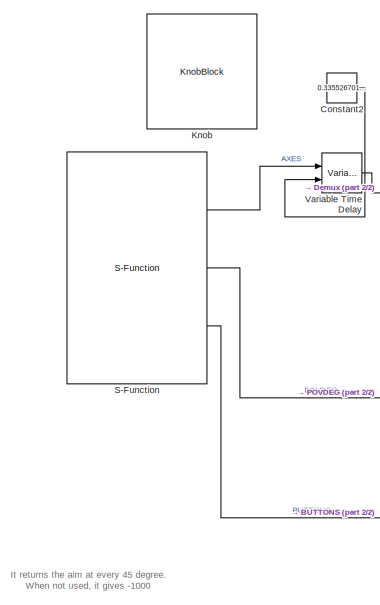
[diagram: root canvas - part 1/2, left side, full height]
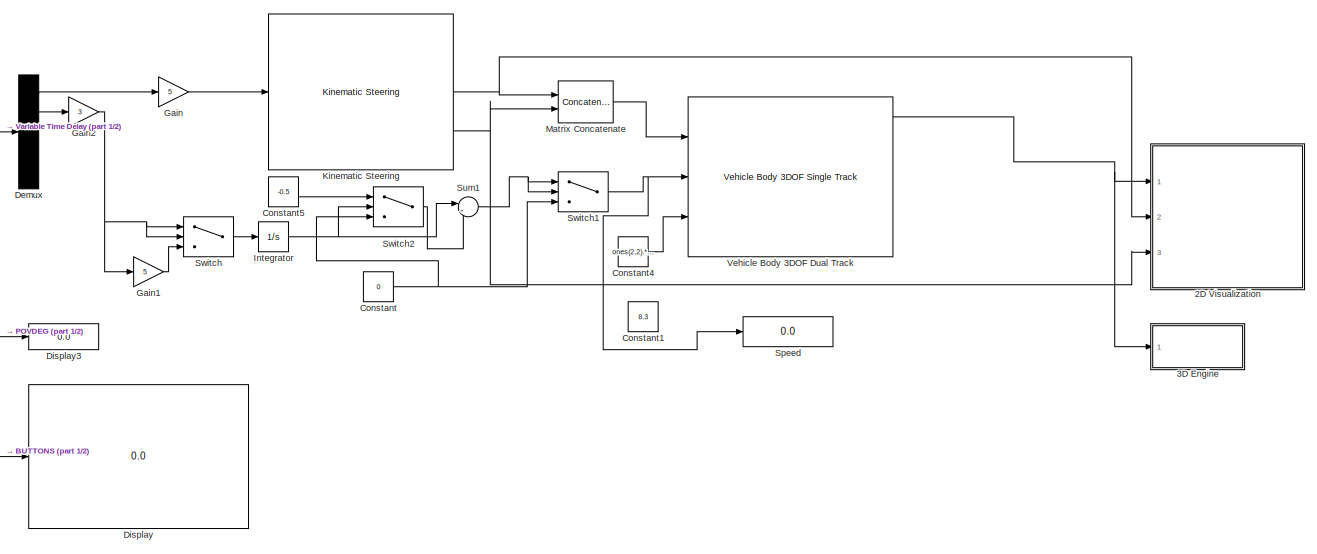
[diagram: root canvas - part 2/2, most of the canvas]
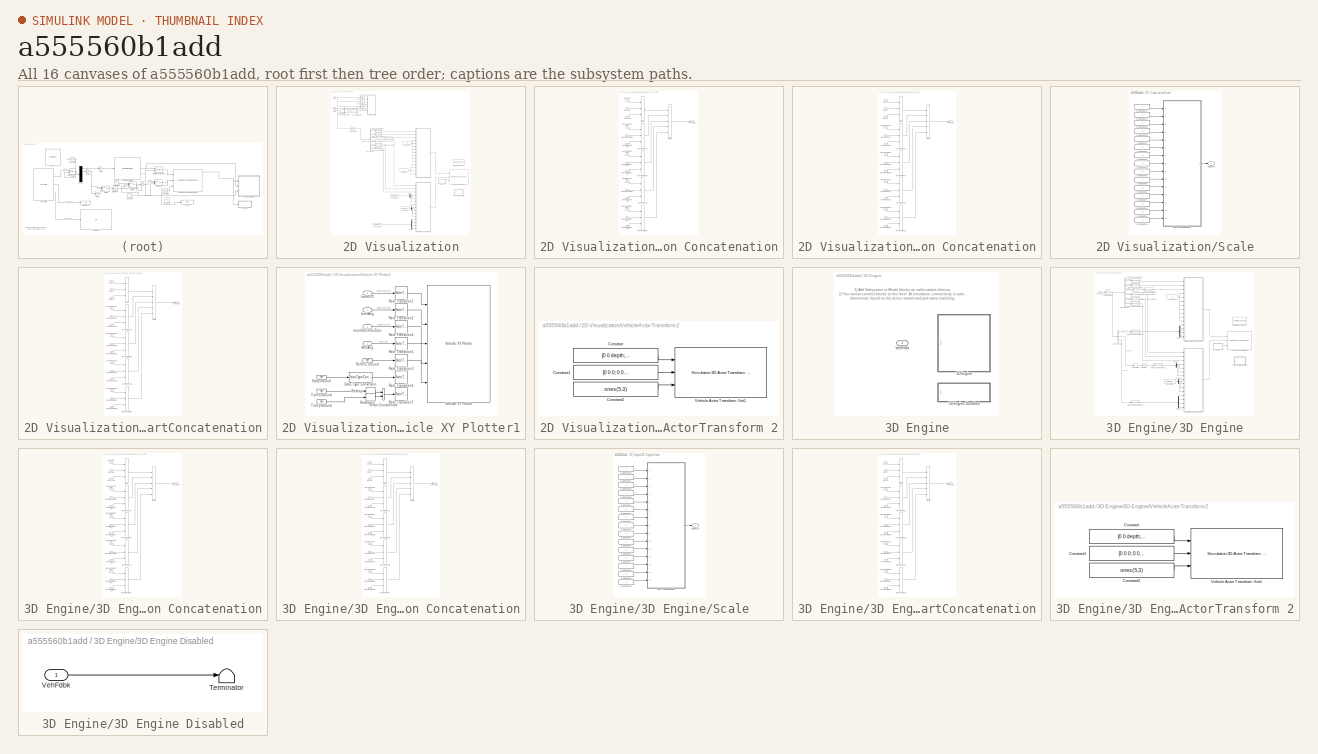
[diagram: thumbnail index - all 16 canvases of the model, root first then tree order]
MODEL slx_a555560b1add
KIND model
CONFIG AbsTol = auto
CONFIG EnableMultiTasking = off
CONFIG FixedStep = auto
CONFIG MaxStep = auto
CONFIG MinStep = auto
CONFIG RelTol = 1e-3
CONFIG SampleTimeConstraint = Unconstrained
CONFIG Solver = VariableStepAuto
CONFIG SolverName = VariableStepAuto
CONFIG StartTime = 0.0
CONFIG StopTime = 45
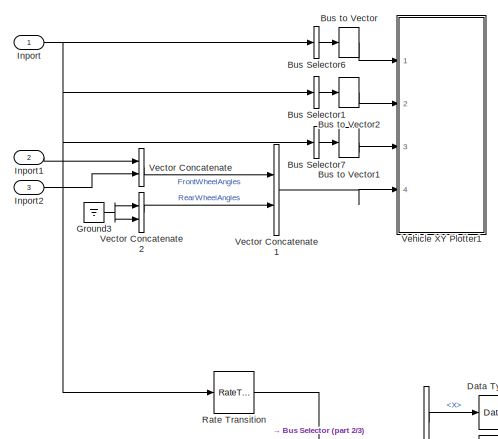
[diagram: 2D Visualization - part 1/3, top left region]
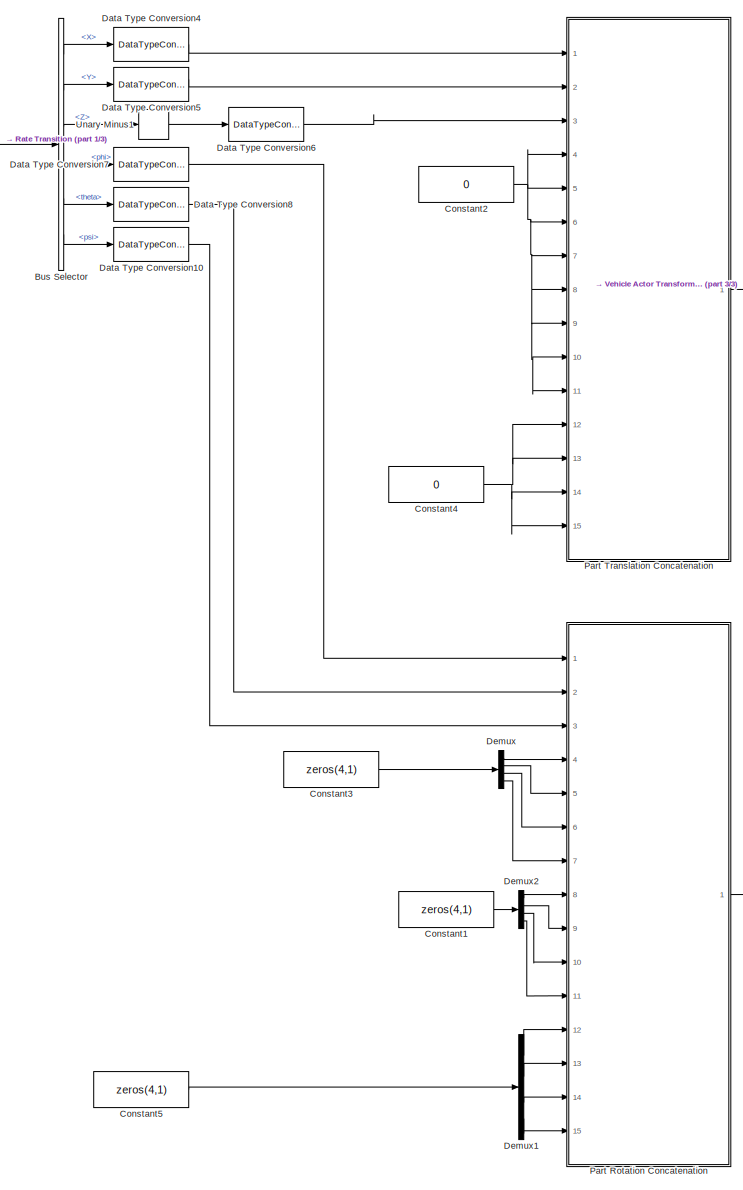
[diagram: 2D Visualization - part 2/3, center side, full height]
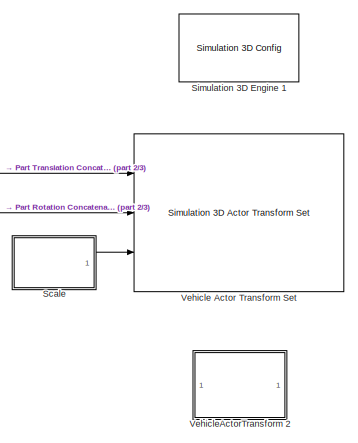
[diagram: 2D Visualization - part 3/3, middle right region]
BLOCK [SubSystem] 2D Visualization
  Ports = [3]
  RequestExecContextInheritance = off
BLOCK [BusSelector] 2D Visualization/Bus Selector
  OutputAsBus = off
  OutputSignals = InertFrm.Geom.Disp.X,InertFrm.Geom.Disp.Y,InertFrm.Geom.Disp.Z,InertFrm.Cg.Ang.phi,InertFrm.Cg.Ang.theta,InertFrm.Cg.Ang.psi
  Ports = [1, 6]
BLOCK [BusSelector] 2D Visualization/Bus Selector1
  OutputAsBus = on
  OutputSignals = InertFrm.Cg.Ang.phi,InertFrm.Cg.Ang.theta,InertFrm.Cg.Ang.psi
  Ports = [1, 1]
BLOCK [BusSelector] 2D Visualization/Bus Selector6
  OutputAsBus = on
  OutputSignals = InertFrm.Geom.Disp.X,InertFrm.Geom.Disp.Y,InertFrm.Geom.Disp.Z
  Ports = [1, 1]
BLOCK [BusSelector] 2D Visualization/Bus Selector7
  OutputAsBus = on
  OutputSignals = InertFrm.Geom.Vel.Xdot,InertFrm.Geom.Vel.Ydot,InertFrm.Geom.Vel.Zdot
  Ports = [1, 1]
BLOCK [BusToVector] 2D Visualization/Bus to Vector
BLOCK [BusToVector] 2D Visualization/Bus to Vector1
BLOCK [BusToVector] 2D Visualization/Bus to Vector2
BLOCK [Constant] 2D Visualization/Constant1
  OutDataTypeStr = single
  Value = zeros(4,1)
BLOCK [Constant] 2D Visualization/Constant2
  OutDataTypeStr = single
  Value = 0
BLOCK [Constant] 2D Visualization/Constant3
  OutDataTypeStr = single
  Value = zeros(4,1)
BLOCK [Constant] 2D Visualization/Constant4
  OutDataTypeStr = single
  Value = 0
BLOCK [Constant] 2D Visualization/Constant5
  OutDataTypeStr = single
  Value = zeros(4,1)
BLOCK [DataTypeConversion] 2D Visualization/Data Type Conversion10
  OutDataTypeStr = single
  RndMeth = Floor
  SaturateOnIntegerOverflow = off
BLOCK [DataTypeConversion] 2D Visualization/Data Type Conversion4
  OutDataTypeStr = single
  RndMeth = Floor
  SaturateOnIntegerOverflow = off
BLOCK [DataTypeConversion] 2D Visualization/Data Type Conversion5
  OutDataTypeStr = single
  RndMeth = Floor
  SaturateOnIntegerOverflow = off
BLOCK [DataTypeConversion] 2D Visualization/Data Type Conversion6
  OutDataTypeStr = single
  RndMeth = Floor
  SaturateOnIntegerOverflow = off
BLOCK [DataTypeConversion] 2D Visualization/Data Type Conversion7
  OutDataTypeStr = single
  RndMeth = Floor
  SaturateOnIntegerOverflow = off
BLOCK [DataTypeConversion] 2D Visualization/Data Type Conversion8
  OutDataTypeStr = single
  RndMeth = Floor
  SaturateOnIntegerOverflow = off
BLOCK [Demux] 2D Visualization/Demux
  DisplayOption = bar
  Ports = [1, 4]
BLOCK [Demux] 2D Visualization/Demux1
  DisplayOption = bar
  Ports = [1, 4]
BLOCK [Demux] 2D Visualization/Demux2
  DisplayOption = bar
  Ports = [1, 4]
BLOCK [Ground] 2D Visualization/Ground3
BLOCK [Inport] 2D Visualization/Inport
  IconDisplay = Port number
BLOCK [Inport] 2D Visualization/Inport1
  IconDisplay = Port number
  Port = 2
BLOCK [Inport] 2D Visualization/Inport2
  IconDisplay = Port number
  Port = 3
BLOCK [SubSystem] 2D Visualization/Part Rotation Concatenation
  Ports = [15, 1]
  RequestExecContextInheritance = off
BLOCK [Concatenate] 2D Visualization/Part Rotation Concatenation/AllParts
  Mode = Multidimensional array
  NumInputs = 5
  Ports = [5, 1]
BLOCK [Concatenate] 2D Visualization/Part Rotation Concatenation/Body
  ConcatenateDimension = 2
  Mode = Multidimensional array
  NumInputs = 3
  Ports = [3, 1]
BLOCK [Inport] 2D Visualization/Part Rotation Concatenation/Body Ptich
  IconDisplay = Port number
  Port = 2
BLOCK [Inport] 2D Visualization/Part Rotation Concatenation/Body Roll
  IconDisplay = Port number
BLOCK [Inport] 2D Visualization/Part Rotation Concatenation/Body Yaw
  IconDisplay = Port number
  Port = 3
BLOCK [Outport] 2D Visualization/Part Rotation Concatenation/ConcatOut
  IconDisplay = Port number
BLOCK [Concatenate] 2D Visualization/Part Rotation Concatenation/WheelFrontLeft
  ConcatenateDimension = 2
  Mode = Multidimensional array
  NumInputs = 3
  Ports = [3, 1]
BLOCK [Inport] 2D Visualization/Part Rotation Concatenation/WheelFrontLeft Pitch
  IconDisplay = Port number
  Port = 4
BLOCK [Inport] 2D Visualization/Part Rotation Concatenation/WheelFrontLeft Roll
  IconDisplay = Port number
  Port = 8
BLOCK [Inport] 2D Visualization/Part Rotation Concatenation/WheelFrontLeft Yaw
  IconDisplay = Port number
  Port = 12
BLOCK [Concatenate] 2D Visualization/Part Rotation Concatenation/WheelFrontRight
  ConcatenateDimension = 2
  Mode = Multidimensional array
  NumInputs = 3
  Ports = [3, 1]
BLOCK [Inport] 2D Visualization/Part Rotation Concatenation/WheelFrontRight Pitch
  IconDisplay = Port number
  Port = 5
BLOCK [Inport] 2D Visualization/Part Rotation Concatenation/WheelFrontRight Roll
  IconDisplay = Port number
  Port = 9
BLOCK [Inport] 2D Visualization/Part Rotation Concatenation/WheelFrontRight Yaw
  IconDisplay = Port number
  Port = 13
BLOCK [Concatenate] 2D Visualization/Part Rotation Concatenation/WheelRearLeft
  ConcatenateDimension = 2
  Mode = Multidimensional array
  NumInputs = 3
  Ports = [3, 1]
BLOCK [Inport] 2D Visualization/Part Rotation Concatenation/WheelRearLeft Pitch
  IconDisplay = Port number
  Port = 6
BLOCK [Inport] 2D Visualization/Part Rotation Concatenation/WheelRearLeft Roll
  IconDisplay = Port number
  Port = 10
BLOCK [Inport] 2D Visualization/Part Rotation Concatenation/WheelRearLeft Yaw
  IconDisplay = Port number
  Port = 14
BLOCK [Concatenate] 2D Visualization/Part Rotation Concatenation/WheelRearRight
  ConcatenateDimension = 2
  Mode = Multidimensional array
  NumInputs = 3
  Ports = [3, 1]
BLOCK [Inport] 2D Visualization/Part Rotation Concatenation/WheelRearRight Ptich
  IconDisplay = Port number
  Port = 7
BLOCK [Inport] 2D Visualization/Part Rotation Concatenation/WheelRearRight Roll
  IconDisplay = Port number
  Port = 11
BLOCK [Inport] 2D Visualization/Part Rotation Concatenation/WheelRearRight Yaw
  IconDisplay = Port number
  Port = 15
BLOCK [SubSystem] 2D Visualization/Part Translation Concatenation
  Ports = [15, 1]
  RequestExecContextInheritance = off
BLOCK [Concatenate] 2D Visualization/Part Translation Concatenation/AllParts
  Mode = Multidimensional array
  NumInputs = 5
  Ports = [5, 1]
BLOCK [Concatenate] 2D Visualization/Part Translation Concatenation/Body
  ConcatenateDimension = 2
  Mode = Multidimensional array
  NumInputs = 3
  Ports = [3, 1]
BLOCK [Inport] 2D Visualization/Part Translation Concatenation/BodyX
  IconDisplay = Port number
BLOCK [Inport] 2D Visualization/Part Translation Concatenation/BodyY
  IconDisplay = Port number
  Port = 2
BLOCK [Inport] 2D Visualization/Part Translation Concatenation/BodyZ
  IconDisplay = Port number
  Port = 3
BLOCK [Outport] 2D Visualization/Part Translation Concatenation/ConcatOut
  IconDisplay = Port number
BLOCK [Concatenate] 2D Visualization/Part Translation Concatenation/WheelFrontLeft
  ConcatenateDimension = 2
  Mode = Multidimensional array
  NumInputs = 3
  Ports = [3, 1]
BLOCK [Inport] 2D Visualization/Part Translation Concatenation/WheelFrontLeftX
  IconDisplay = Port number
  Port = 4
BLOCK [Inport] 2D Visualization/Part Translation Concatenation/WheelFrontLeftY
  IconDisplay = Port number
  Port = 8
BLOCK [Inport] 2D Visualization/Part Translation Concatenation/WheelFrontLeftZ
  IconDisplay = Port number
  Port = 12
BLOCK [Concatenate] 2D Visualization/Part Translation Concatenation/WheelFrontRight
  ConcatenateDimension = 2
  Mode = Multidimensional array
  NumInputs = 3
  Ports = [3, 1]
BLOCK [Inport] 2D Visualization/Part Translation Concatenation/WheelFrontRightX
  IconDisplay = Port number
  Port = 5
BLOCK [Inport] 2D Visualization/Part Translation Concatenation/WheelFrontRightY
  IconDisplay = Port number
  Port = 9
BLOCK [Inport] 2D Visualization/Part Translation Concatenation/WheelFrontRightZ
  IconDisplay = Port number
  Port = 13
BLOCK [Concatenate] 2D Visualization/Part Translation Concatenation/WheelRearLeft
  ConcatenateDimension = 2
  Mode = Multidimensional array
  NumInputs = 3
  Ports = [3, 1]
BLOCK [Inport] 2D Visualization/Part Translation Concatenation/WheelRearLeftX
  IconDisplay = Port number
  Port = 6
BLOCK [Inport] 2D Visualization/Part Translation Concatenation/WheelRearLeftY
  IconDisplay = Port number
  Port = 10
BLOCK [Inport] 2D Visualization/Part Translation Concatenation/WheelRearLeftZ
  IconDisplay = Port number
  Port = 14
BLOCK [Concatenate] 2D Visualization/Part Translation Concatenation/WheelRearRight
  ConcatenateDimension = 2
  Mode = Multidimensional array
  NumInputs = 3
  Ports = [3, 1]
BLOCK [Inport] 2D Visualization/Part Translation Concatenation/WheelRearRightX
  IconDisplay = Port number
  Port = 7
BLOCK [Inport] 2D Visualization/Part Translation Concatenation/WheelRearRightY
  IconDisplay = Port number
  Port = 11
BLOCK [Inport] 2D Visualization/Part Translation Concatenation/WheelRearRightZ
  IconDisplay = Port number
  Port = 15
BLOCK [RateTransition] 2D Visualization/Rate Transition
  OutPortSampleTime = .03
BLOCK [SubSystem] 2D Visualization/Scale
  Ports = [0, 1]
  RequestExecContextInheritance = off
BLOCK [Constant] 2D Visualization/Scale/Constant1
  OutDataTypeStr = single
BLOCK [Constant] 2D Visualization/Scale/Constant10
  OutDataTypeStr = single
BLOCK [Constant] 2D Visualization/Scale/Constant11
  OutDataTypeStr = single
BLOCK [Constant] 2D Visualization/Scale/Constant12
  OutDataTypeStr = single
BLOCK [Constant] 2D Visualization/Scale/Constant17
  OutDataTypeStr = single
BLOCK [Constant] 2D Visualization/Scale/Constant2
  OutDataTypeStr = single
BLOCK [Constant] 2D Visualization/Scale/Constant3
  OutDataTypeStr = single
BLOCK [Constant] 2D Visualization/Scale/Constant32
  OutDataTypeStr = single
BLOCK [Constant] 2D Visualization/Scale/Constant33
  OutDataTypeStr = single
BLOCK [Constant] 2D Visualization/Scale/Constant4
  OutDataTypeStr = single
BLOCK [Constant] 2D Visualization/Scale/Constant5
  OutDataTypeStr = single
BLOCK [Constant] 2D Visualization/Scale/Constant6
  OutDataTypeStr = single
BLOCK [Constant] 2D Visualization/Scale/Constant7
  OutDataTypeStr = single
BLOCK [Constant] 2D Visualization/Scale/Constant8
  OutDataTypeStr = single
BLOCK [Constant] 2D Visualization/Scale/Constant9
  OutDataTypeStr = single
BLOCK [SubSystem] 2D Visualization/Scale/PartConcatenation
  Ports = [15, 1]
  RequestExecContextInheritance = off
BLOCK [Concatenate] 2D Visualization/Scale/PartConcatenation/AllParts
  Mode = Multidimensional array
  NumInputs = 5
  Ports = [5, 1]
BLOCK [Concatenate] 2D Visualization/Scale/PartConcatenation/Body
  ConcatenateDimension = 2
  Mode = Multidimensional array
  NumInputs = 3
  Ports = [3, 1]
BLOCK [Inport] 2D Visualization/Scale/PartConcatenation/BodyX
  IconDisplay = Port number
BLOCK [Inport] 2D Visualization/Scale/PartConcatenation/BodyY
  IconDisplay = Port number
  Port = 2
BLOCK [Inport] 2D Visualization/Scale/PartConcatenation/BodyZ
  IconDisplay = Port number
  Port = 3
BLOCK [Outport] 2D Visualization/Scale/PartConcatenation/ConcatOut
  IconDisplay = Port number
BLOCK [Concatenate] 2D Visualization/Scale/PartConcatenation/WheelFrontLeft
  ConcatenateDimension = 2
  Mode = Multidimensional array
  NumInputs = 3
  Ports = [3, 1]
BLOCK [Inport] 2D Visualization/Scale/PartConcatenation/WheelFrontLeftX
  IconDisplay = Port number
  Port = 4
BLOCK [Inport] 2D Visualization/Scale/PartConcatenation/WheelFrontLeftY
  IconDisplay = Port number
  Port = 5
BLOCK [Inport] 2D Visualization/Scale/PartConcatenation/WheelFrontLeftZ
  IconDisplay = Port number
  Port = 6
BLOCK [Concatenate] 2D Visualization/Scale/PartConcatenation/WheelFrontRight
  ConcatenateDimension = 2
  Mode = Multidimensional array
  NumInputs = 3
  Ports = [3, 1]
BLOCK [Inport] 2D Visualization/Scale/PartConcatenation/WheelFrontRightX
  IconDisplay = Port number
  Port = 7
BLOCK [Inport] 2D Visualization/Scale/PartConcatenation/WheelFrontRightY
  IconDisplay = Port number
  Port = 8
BLOCK [Inport] 2D Visualization/Scale/PartConcatenation/WheelFrontRightZ
  IconDisplay = Port number
  Port = 9
BLOCK [Concatenate] 2D Visualization/Scale/PartConcatenation/WheelRearLeft
  ConcatenateDimension = 2
  Mode = Multidimensional array
  NumInputs = 3
  Ports = [3, 1]
BLOCK [Inport] 2D Visualization/Scale/PartConcatenation/WheelRearLeftX
  IconDisplay = Port number
  Port = 10
BLOCK [Inport] 2D Visualization/Scale/PartConcatenation/WheelRearLeftY
  IconDisplay = Port number
  Port = 11
BLOCK [Inport] 2D Visualization/Scale/PartConcatenation/WheelRearLeftZ
  IconDisplay = Port number
  Port = 12
BLOCK [Concatenate] 2D Visualization/Scale/PartConcatenation/WheelRearRight
  ConcatenateDimension = 2
  Mode = Multidimensional array
  NumInputs = 3
  Ports = [3, 1]
BLOCK [Inport] 2D Visualization/Scale/PartConcatenation/WheelRearRightX
  IconDisplay = Port number
  Port = 13
BLOCK [Inport] 2D Visualization/Scale/PartConcatenation/WheelRearRightY
  IconDisplay = Port number
  Port = 14
BLOCK [Inport] 2D Visualization/Scale/PartConcatenation/WheelRearRightZ
  IconDisplay = Port number
  Port = 15
BLOCK [Outport] 2D Visualization/Scale/ScaleOut
  IconDisplay = Port number
BLOCK [Reference] 2D Visualization/Simulation 3D Engine 1  REF=sim3dlib/Simulation 3D Config
  AttributesFormatString = Priority: %<Priority>
  Ports = []
  Priority = 1
  SourceBlock = sim3dlib/Simulation 3D Config
  SourceProductBaseCode = VE
  SourceProductName = Vehicle Dynamics Blockset
  SourceType = 3D Simulation Setup
BLOCK [UnaryMinus] 2D Visualization/Unary Minus1
BLOCK [Concatenate] 2D Visualization/Vector Concatenate
  Ports = [2, 1]
BLOCK [Concatenate] 2D Visualization/Vector Concatenate1
  Ports = [2, 1]
BLOCK [Concatenate] 2D Visualization/Vector Concatenate2
  Ports = [2, 1]
BLOCK [Reference] 2D Visualization/Vehicle Actor Transform Set  REF=sim3dlib/Simulation 3D Actor Transform Set
  Ports = [3]
  SourceBlock = sim3dlib/Simulation 3D Actor Transform Set
  SourceProductBaseCode = VE
  SourceProductName = Vehicle Dynamics Blockset
  SourceType = Transform Set
BLOCK [SubSystem] 2D Visualization/Vehicle XY Plotter1
  Ports = [4]
  RequestExecContextInheritance = off
BLOCK [DataTypeConversion] 2D Visualization/Vehicle XY Plotter1/Data Type Conversion
  OutDataTypeStr = double
  RndMeth = Floor
  SaturateOnIntegerOverflow = off
BLOCK [Inport] 2D Visualization/Vehicle XY Plotter1/InertAng
  IconDisplay = Port number
  Port = 2
BLOCK [Inport] 2D Visualization/Vehicle XY Plotter1/InertXYZ
  IconDisplay = Port number
BLOCK [Inport] 2D Visualization/Vehicle XY Plotter1/InertXdotYdotZdot
  IconDisplay = Port number
  Port = 3
BLOCK [RateTransition] 2D Visualization/Vehicle XY Plotter1/Rate Transition1
  Deterministic = off
  OutPortSampleTime = pltDT
BLOCK [RateTransition] 2D Visualization/Vehicle XY Plotter1/Rate Transition2
  Deterministic = off
  OutPortSampleTime = pltDT
BLOCK [RateTransition] 2D Visualization/Vehicle XY Plotter1/Rate Transition3
  Deterministic = off
  OutPortSampleTime = pltDT
BLOCK [RateTransition] 2D Visualization/Vehicle XY Plotter1/Rate Transition4
  Deterministic = off
  OutPortSampleTime = pltDT
BLOCK [RateTransition] 2D Visualization/Vehicle XY Plotter1/Rate Transition5
  Deterministic = off
  OutPortSampleTime = pltDT
BLOCK [RateTransition] 2D Visualization/Vehicle XY Plotter1/Rate Transition6
  Deterministic = off
  OutPortSampleTime = pltDT
BLOCK [RateTransition] 2D Visualization/Vehicle XY Plotter1/Rate Transition7
  Deterministic = off
  OutPortSampleTime = pltDT
BLOCK [Ground] 2D Visualization/Vehicle XY Plotter1/RefXYZ Ground
BLOCK [Reshape] 2D Visualization/Vehicle XY Plotter1/Reshape
  OutputDimensionality = Row vector (2-D)
  Ports = [1, 1]
BLOCK [Reshape] 2D Visualization/Vehicle XY Plotter1/Reshape1
  OutputDimensionality = Row vector (2-D)
  Ports = [1, 1]
BLOCK [Ground] 2D Visualization/Vehicle XY Plotter1/Stats Ground
BLOCK [Ground] 2D Visualization/Vehicle XY Plotter1/TireFx Ground
BLOCK [Ground] 2D Visualization/Vehicle XY Plotter1/TireFy Ground
BLOCK [Concatenate] 2D Visualization/Vehicle XY Plotter1/Vector Concatenate
  Mode = Multidimensional array
  Ports = [2, 1]
BLOCK [Reference] 2D Visualization/Vehicle XY Plotter1/Vehicle XY Plotter  REF=vehdynlibviscommon/Vehicle XY Plotter
  Ports = [5]
  SourceBlock = vehdynlibviscommon/Vehicle XY Plotter
  SourceProductBaseCode = VE
  SourceType = Vehicle XY Plotter
BLOCK [Inport] 2D Visualization/Vehicle XY Plotter1/WhlAng
  IconDisplay = Port number
  Port = 4
BLOCK [SubSystem] 2D Visualization/VehicleActorTransform 2
  Ports = []
  RequestExecContextInheritance = off
BLOCK [Constant] 2D Visualization/VehicleActorTransform 2/Constant
  Value = [0 0 depth; 0 0 0; 0 0 0; 0 0 0; 0 0 0]
BLOCK [Constant] 2D Visualization/VehicleActorTransform 2/Constant1
  Value = [0 0 0; 0 0 0; 0 0 0; 0 0 0; 0 0 0]
BLOCK [Constant] 2D Visualization/VehicleActorTransform 2/Constant2
  Value = ones(5,3)
BLOCK [Reference] 2D Visualization/VehicleActorTransform 2/Vehicle Actor Transform Set1  REF=sim3dlib/Simulation 3D Actor Transform Set
  Ports = [3]
  SourceBlock = sim3dlib/Simulation 3D Actor Transform Set
  SourceProductBaseCode = VE
  SourceProductName = Vehicle Dynamics Blockset
  SourceType = Transform Set
BLOCK [SubSystem] 3D Engine
  AttributesFormatString = %<SceneDesc>\n%<engine3D>
  LabelModeActiveChoice = 1
  Ports = [1]
  RequestExecContextInheritance = off
  Variant = on
  VariantControlMode = Label
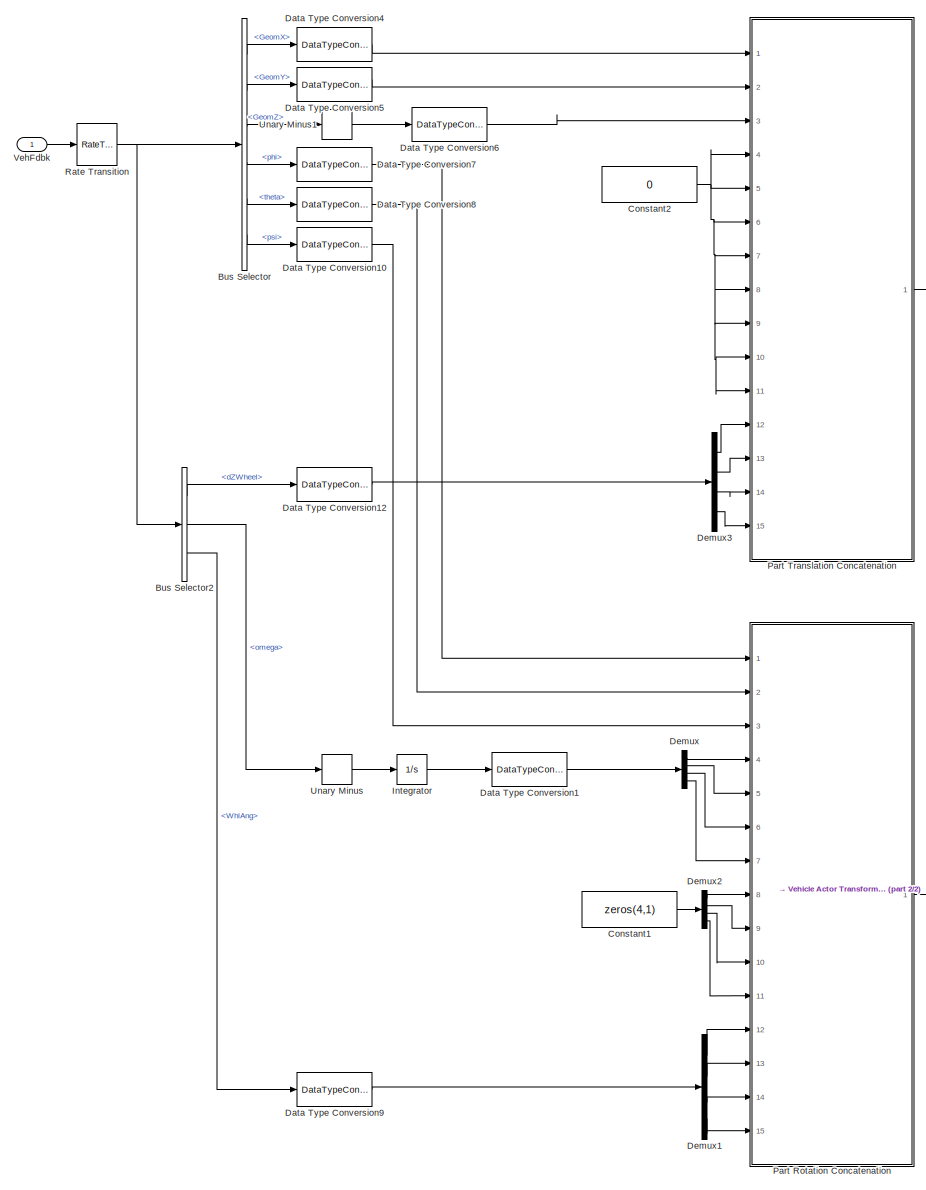
[diagram: 3D Engine/3D Engine - part 1/2, center side, full height]
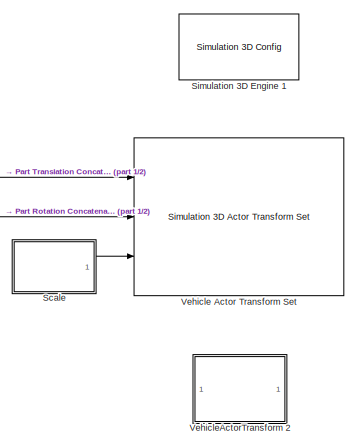
[diagram: 3D Engine/3D Engine - part 2/2, middle right region]
BLOCK [SubSystem] 3D Engine/3D Engine
  Ports = [1]
  RequestExecContextInheritance = off
  VariantControl = 1
BLOCK [SubSystem] 3D Engine/3D Engine Disabled
  Ports = [1]
  RequestExecContextInheritance = off
  VariantControl = 0
BLOCK [Terminator] 3D Engine/3D Engine Disabled/Terminator
BLOCK [Inport] 3D Engine/3D Engine Disabled/VehFdbk
  IconDisplay = Port number
BLOCK [BusSelector] 3D Engine/3D Engine/Bus Selector
  OutputAsBus = off
  OutputSignals = Body.GeomX,Body.GeomY,Body.GeomZ,Body.phi,Body.theta,Body.psi
  Ports = [1, 6]
BLOCK [BusSelector] 3D Engine/3D Engine/Bus Selector2
  OutputAsBus = off
  OutputSignals = Wheels.dZWheel,Wheels.omega,Driveline.WhlAng
  Ports = [1, 3]
BLOCK [Constant] 3D Engine/3D Engine/Constant1
  OutDataTypeStr = single
  Value = zeros(4,1)
BLOCK [Constant] 3D Engine/3D Engine/Constant2
  OutDataTypeStr = single
  Value = 0
BLOCK [DataTypeConversion] 3D Engine/3D Engine/Data Type Conversion1
  OutDataTypeStr = single
  RndMeth = Floor
  SaturateOnIntegerOverflow = off
BLOCK [DataTypeConversion] 3D Engine/3D Engine/Data Type Conversion10
  OutDataTypeStr = single
  RndMeth = Floor
  SaturateOnIntegerOverflow = off
BLOCK [DataTypeConversion] 3D Engine/3D Engine/Data Type Conversion12
  OutDataTypeStr = single
  RndMeth = Floor
  SaturateOnIntegerOverflow = off
BLOCK [DataTypeConversion] 3D Engine/3D Engine/Data Type Conversion4
  OutDataTypeStr = single
  RndMeth = Floor
  SaturateOnIntegerOverflow = off
BLOCK [DataTypeConversion] 3D Engine/3D Engine/Data Type Conversion5
  OutDataTypeStr = single
  RndMeth = Floor
  SaturateOnIntegerOverflow = off
BLOCK [DataTypeConversion] 3D Engine/3D Engine/Data Type Conversion6
  OutDataTypeStr = single
  RndMeth = Floor
  SaturateOnIntegerOverflow = off
BLOCK [DataTypeConversion] 3D Engine/3D Engine/Data Type Conversion7
  OutDataTypeStr = single
  RndMeth = Floor
  SaturateOnIntegerOverflow = off
BLOCK [DataTypeConversion] 3D Engine/3D Engine/Data Type Conversion8
  OutDataTypeStr = single
  RndMeth = Floor
  SaturateOnIntegerOverflow = off
BLOCK [DataTypeConversion] 3D Engine/3D Engine/Data Type Conversion9
  OutDataTypeStr = single
  RndMeth = Floor
  SaturateOnIntegerOverflow = off
BLOCK [Demux] 3D Engine/3D Engine/Demux
  DisplayOption = bar
  Ports = [1, 4]
BLOCK [Demux] 3D Engine/3D Engine/Demux1
  DisplayOption = bar
  Ports = [1, 4]
BLOCK [Demux] 3D Engine/3D Engine/Demux2
  DisplayOption = bar
  Ports = [1, 4]
BLOCK [Demux] 3D Engine/3D Engine/Demux3
  DisplayOption = bar
  Ports = [1, 4]
BLOCK [Integrator] 3D Engine/3D Engine/Integrator
  Ports = [1, 1]
  WrapState = on
  WrappedStateLowerValue = 0
  WrappedStateUpperValue = 2*pi
  ZeroCross = off
BLOCK [SubSystem] 3D Engine/3D Engine/Part Rotation Concatenation
  Ports = [15, 1]
  RequestExecContextInheritance = off
BLOCK [Concatenate] 3D Engine/3D Engine/Part Rotation Concatenation/AllParts
  Mode = Multidimensional array
  NumInputs = 5
  Ports = [5, 1]
BLOCK [Concatenate] 3D Engine/3D Engine/Part Rotation Concatenation/Body
  ConcatenateDimension = 2
  Mode = Multidimensional array
  NumInputs = 3
  Ports = [3, 1]
BLOCK [Inport] 3D Engine/3D Engine/Part Rotation Concatenation/Body Ptich
  IconDisplay = Port number
  Port = 2
BLOCK [Inport] 3D Engine/3D Engine/Part Rotation Concatenation/Body Roll
  IconDisplay = Port number
BLOCK [Inport] 3D Engine/3D Engine/Part Rotation Concatenation/Body Yaw
  IconDisplay = Port number
  Port = 3
BLOCK [Outport] 3D Engine/3D Engine/Part Rotation Concatenation/ConcatOut
  IconDisplay = Port number
BLOCK [Concatenate] 3D Engine/3D Engine/Part Rotation Concatenation/WheelFrontLeft
  ConcatenateDimension = 2
  Mode = Multidimensional array
  NumInputs = 3
  Ports = [3, 1]
BLOCK [Inport] 3D Engine/3D Engine/Part Rotation Concatenation/WheelFrontLeft Pitch
  IconDisplay = Port number
  Port = 4
BLOCK [Inport] 3D Engine/3D Engine/Part Rotation Concatenation/WheelFrontLeft Roll
  IconDisplay = Port number
  Port = 8
BLOCK [Inport] 3D Engine/3D Engine/Part Rotation Concatenation/WheelFrontLeft Yaw
  IconDisplay = Port number
  Port = 12
BLOCK [Concatenate] 3D Engine/3D Engine/Part Rotation Concatenation/WheelFrontRight
  ConcatenateDimension = 2
  Mode = Multidimensional array
  NumInputs = 3
  Ports = [3, 1]
BLOCK [Inport] 3D Engine/3D Engine/Part Rotation Concatenation/WheelFrontRight Pitch
  IconDisplay = Port number
  Port = 5
BLOCK [Inport] 3D Engine/3D Engine/Part Rotation Concatenation/WheelFrontRight Roll
  IconDisplay = Port number
  Port = 9
BLOCK [Inport] 3D Engine/3D Engine/Part Rotation Concatenation/WheelFrontRight Yaw
  IconDisplay = Port number
  Port = 13
BLOCK [Concatenate] 3D Engine/3D Engine/Part Rotation Concatenation/WheelRearLeft
  ConcatenateDimension = 2
  Mode = Multidimensional array
  NumInputs = 3
  Ports = [3, 1]
BLOCK [Inport] 3D Engine/3D Engine/Part Rotation Concatenation/WheelRearLeft Pitch
  IconDisplay = Port number
  Port = 6
BLOCK [Inport] 3D Engine/3D Engine/Part Rotation Concatenation/WheelRearLeft Roll
  IconDisplay = Port number
  Port = 10
BLOCK [Inport] 3D Engine/3D Engine/Part Rotation Concatenation/WheelRearLeft Yaw
  IconDisplay = Port number
  Port = 14
BLOCK [Concatenate] 3D Engine/3D Engine/Part Rotation Concatenation/WheelRearRight
  ConcatenateDimension = 2
  Mode = Multidimensional array
  NumInputs = 3
  Ports = [3, 1]
BLOCK [Inport] 3D Engine/3D Engine/Part Rotation Concatenation/WheelRearRight Ptich
  IconDisplay = Port number
  Port = 7
BLOCK [Inport] 3D Engine/3D Engine/Part Rotation Concatenation/WheelRearRight Roll
  IconDisplay = Port number
  Port = 11
BLOCK [Inport] 3D Engine/3D Engine/Part Rotation Concatenation/WheelRearRight Yaw
  IconDisplay = Port number
  Port = 15
BLOCK [SubSystem] 3D Engine/3D Engine/Part Translation Concatenation
  Ports = [15, 1]
  RequestExecContextInheritance = off
BLOCK [Concatenate] 3D Engine/3D Engine/Part Translation Concatenation/AllParts
  Mode = Multidimensional array
  NumInputs = 5
  Ports = [5, 1]
BLOCK [Concatenate] 3D Engine/3D Engine/Part Translation Concatenation/Body
  ConcatenateDimension = 2
  Mode = Multidimensional array
  NumInputs = 3
  Ports = [3, 1]
BLOCK [Inport] 3D Engine/3D Engine/Part Translation Concatenation/BodyX
  IconDisplay = Port number
BLOCK [Inport] 3D Engine/3D Engine/Part Translation Concatenation/BodyY
  IconDisplay = Port number
  Port = 2
BLOCK [Inport] 3D Engine/3D Engine/Part Translation Concatenation/BodyZ
  IconDisplay = Port number
  Port = 3
BLOCK [Outport] 3D Engine/3D Engine/Part Translation Concatenation/ConcatOut
  IconDisplay = Port number
BLOCK [Concatenate] 3D Engine/3D Engine/Part Translation Concatenation/WheelFrontLeft
  ConcatenateDimension = 2
  Mode = Multidimensional array
  NumInputs = 3
  Ports = [3, 1]
BLOCK [Inport] 3D Engine/3D Engine/Part Translation Concatenation/WheelFrontLeftX
  IconDisplay = Port number
  Port = 4
BLOCK [Inport] 3D Engine/3D Engine/Part Translation Concatenation/WheelFrontLeftY
  IconDisplay = Port number
  Port = 8
BLOCK [Inport] 3D Engine/3D Engine/Part Translation Concatenation/WheelFrontLeftZ
  IconDisplay = Port number
  Port = 12
BLOCK [Concatenate] 3D Engine/3D Engine/Part Translation Concatenation/WheelFrontRight
  ConcatenateDimension = 2
  Mode = Multidimensional array
  NumInputs = 3
  Ports = [3, 1]
BLOCK [Inport] 3D Engine/3D Engine/Part Translation Concatenation/WheelFrontRightX
  IconDisplay = Port number
  Port = 5
BLOCK [Inport] 3D Engine/3D Engine/Part Translation Concatenation/WheelFrontRightY
  IconDisplay = Port number
  Port = 9
BLOCK [Inport] 3D Engine/3D Engine/Part Translation Concatenation/WheelFrontRightZ
  IconDisplay = Port number
  Port = 13
BLOCK [Concatenate] 3D Engine/3D Engine/Part Translation Concatenation/WheelRearLeft
  ConcatenateDimension = 2
  Mode = Multidimensional array
  NumInputs = 3
  Ports = [3, 1]
BLOCK [Inport] 3D Engine/3D Engine/Part Translation Concatenation/WheelRearLeftX
  IconDisplay = Port number
  Port = 6
BLOCK [Inport] 3D Engine/3D Engine/Part Translation Concatenation/WheelRearLeftY
  IconDisplay = Port number
  Port = 10
BLOCK [Inport] 3D Engine/3D Engine/Part Translation Concatenation/WheelRearLeftZ
  IconDisplay = Port number
  Port = 14
BLOCK [Concatenate] 3D Engine/3D Engine/Part Translation Concatenation/WheelRearRight
  ConcatenateDimension = 2
  Mode = Multidimensional array
  NumInputs = 3
  Ports = [3, 1]
BLOCK [Inport] 3D Engine/3D Engine/Part Translation Concatenation/WheelRearRightX
  IconDisplay = Port number
  Port = 7
BLOCK [Inport] 3D Engine/3D Engine/Part Translation Concatenation/WheelRearRightY
  IconDisplay = Port number
  Port = 11
BLOCK [Inport] 3D Engine/3D Engine/Part Translation Concatenation/WheelRearRightZ
  IconDisplay = Port number
  Port = 15
BLOCK [RateTransition] 3D Engine/3D Engine/Rate Transition
  OutPortSampleTime = dt3D
BLOCK [SubSystem] 3D Engine/3D Engine/Scale
  Ports = [0, 1]
  RequestExecContextInheritance = off
BLOCK [Constant] 3D Engine/3D Engine/Scale/Constant1
  OutDataTypeStr = single
BLOCK [Constant] 3D Engine/3D Engine/Scale/Constant10
  OutDataTypeStr = single
BLOCK [Constant] 3D Engine/3D Engine/Scale/Constant11
  OutDataTypeStr = single
BLOCK [Constant] 3D Engine/3D Engine/Scale/Constant12
  OutDataTypeStr = single
BLOCK [Constant] 3D Engine/3D Engine/Scale/Constant17
  OutDataTypeStr = single
BLOCK [Constant] 3D Engine/3D Engine/Scale/Constant2
  OutDataTypeStr = single
BLOCK [Constant] 3D Engine/3D Engine/Scale/Constant3
  OutDataTypeStr = single
BLOCK [Constant] 3D Engine/3D Engine/Scale/Constant32
  OutDataTypeStr = single
BLOCK [Constant] 3D Engine/3D Engine/Scale/Constant33
  OutDataTypeStr = single
BLOCK [Constant] 3D Engine/3D Engine/Scale/Constant4
  OutDataTypeStr = single
BLOCK [Constant] 3D Engine/3D Engine/Scale/Constant5
  OutDataTypeStr = single
BLOCK [Constant] 3D Engine/3D Engine/Scale/Constant6
  OutDataTypeStr = single
BLOCK [Constant] 3D Engine/3D Engine/Scale/Constant7
  OutDataTypeStr = single
BLOCK [Constant] 3D Engine/3D Engine/Scale/Constant8
  OutDataTypeStr = single
BLOCK [Constant] 3D Engine/3D Engine/Scale/Constant9
  OutDataTypeStr = single
BLOCK [SubSystem] 3D Engine/3D Engine/Scale/PartConcatenation
  Ports = [15, 1]
  RequestExecContextInheritance = off
BLOCK [Concatenate] 3D Engine/3D Engine/Scale/PartConcatenation/AllParts
  Mode = Multidimensional array
  NumInputs = 5
  Ports = [5, 1]
BLOCK [Concatenate] 3D Engine/3D Engine/Scale/PartConcatenation/Body
  ConcatenateDimension = 2
  Mode = Multidimensional array
  NumInputs = 3
  Ports = [3, 1]
BLOCK [Inport] 3D Engine/3D Engine/Scale/PartConcatenation/BodyX
  IconDisplay = Port number
BLOCK [Inport] 3D Engine/3D Engine/Scale/PartConcatenation/BodyY
  IconDisplay = Port number
  Port = 2
BLOCK [Inport] 3D Engine/3D Engine/Scale/PartConcatenation/BodyZ
  IconDisplay = Port number
  Port = 3
BLOCK [Outport] 3D Engine/3D Engine/Scale/PartConcatenation/ConcatOut
  IconDisplay = Port number
BLOCK [Concatenate] 3D Engine/3D Engine/Scale/PartConcatenation/WheelFrontLeft
  ConcatenateDimension = 2
  Mode = Multidimensional array
  NumInputs = 3
  Ports = [3, 1]
BLOCK [Inport] 3D Engine/3D Engine/Scale/PartConcatenation/WheelFrontLeftX
  IconDisplay = Port number
  Port = 4
BLOCK [Inport] 3D Engine/3D Engine/Scale/PartConcatenation/WheelFrontLeftY
  IconDisplay = Port number
  Port = 5
BLOCK [Inport] 3D Engine/3D Engine/Scale/PartConcatenation/WheelFrontLeftZ
  IconDisplay = Port number
  Port = 6
BLOCK [Concatenate] 3D Engine/3D Engine/Scale/PartConcatenation/WheelFrontRight
  ConcatenateDimension = 2
  Mode = Multidimensional array
  NumInputs = 3
  Ports = [3, 1]
BLOCK [Inport] 3D Engine/3D Engine/Scale/PartConcatenation/WheelFrontRightX
  IconDisplay = Port number
  Port = 7
BLOCK [Inport] 3D Engine/3D Engine/Scale/PartConcatenation/WheelFrontRightY
  IconDisplay = Port number
  Port = 8
BLOCK [Inport] 3D Engine/3D Engine/Scale/PartConcatenation/WheelFrontRightZ
  IconDisplay = Port number
  Port = 9
BLOCK [Concatenate] 3D Engine/3D Engine/Scale/PartConcatenation/WheelRearLeft
  ConcatenateDimension = 2
  Mode = Multidimensional array
  NumInputs = 3
  Ports = [3, 1]
BLOCK [Inport] 3D Engine/3D Engine/Scale/PartConcatenation/WheelRearLeftX
  IconDisplay = Port number
  Port = 10
BLOCK [Inport] 3D Engine/3D Engine/Scale/PartConcatenation/WheelRearLeftY
  IconDisplay = Port number
  Port = 11
BLOCK [Inport] 3D Engine/3D Engine/Scale/PartConcatenation/WheelRearLeftZ
  IconDisplay = Port number
  Port = 12
BLOCK [Concatenate] 3D Engine/3D Engine/Scale/PartConcatenation/WheelRearRight
  ConcatenateDimension = 2
  Mode = Multidimensional array
  NumInputs = 3
  Ports = [3, 1]
BLOCK [Inport] 3D Engine/3D Engine/Scale/PartConcatenation/WheelRearRightX
  IconDisplay = Port number
  Port = 13
BLOCK [Inport] 3D Engine/3D Engine/Scale/PartConcatenation/WheelRearRightY
  IconDisplay = Port number
  Port = 14
BLOCK [Inport] 3D Engine/3D Engine/Scale/PartConcatenation/WheelRearRightZ
  IconDisplay = Port number
  Port = 15
BLOCK [Outport] 3D Engine/3D Engine/Scale/ScaleOut
  IconDisplay = Port number
BLOCK [Reference] 3D Engine/3D Engine/Simulation 3D Engine 1  REF=sim3dlib/Simulation 3D Config
  AttributesFormatString = Priority: %<Priority>
  Ports = []
  Priority = 1
  SourceBlock = sim3dlib/Simulation 3D Config
  SourceProductBaseCode = VE
  SourceProductName = Vehicle Dynamics Blockset
  SourceType = 3D Simulation Setup
BLOCK [UnaryMinus] 3D Engine/3D Engine/Unary Minus
BLOCK [UnaryMinus] 3D Engine/3D Engine/Unary Minus1
BLOCK [Inport] 3D Engine/3D Engine/VehFdbk
  IconDisplay = Port number
BLOCK [Reference] 3D Engine/3D Engine/Vehicle Actor Transform Set  REF=sim3dlib/Simulation 3D Actor Transform Set
  Ports = [3]
  SourceBlock = sim3dlib/Simulation 3D Actor Transform Set
  SourceProductBaseCode = VE
  SourceProductName = Vehicle Dynamics Blockset
  SourceType = Transform Set
BLOCK [SubSystem] 3D Engine/3D Engine/VehicleActorTransform 2
  Ports = []
  RequestExecContextInheritance = off
BLOCK [Constant] 3D Engine/3D Engine/VehicleActorTransform 2/Constant
  Value = [0 0 depth; 0 0 0; 0 0 0; 0 0 0; 0 0 0]
BLOCK [Constant] 3D Engine/3D Engine/VehicleActorTransform 2/Constant1
  Value = [0 0 0; 0 0 0; 0 0 0; 0 0 0; 0 0 0]
BLOCK [Constant] 3D Engine/3D Engine/VehicleActorTransform 2/Constant2
  Value = ones(5,3)
BLOCK [Reference] 3D Engine/3D Engine/VehicleActorTransform 2/Vehicle Actor Transform Set1  REF=sim3dlib/Simulation 3D Actor Transform Set
  Ports = [3]
  SourceBlock = sim3dlib/Simulation 3D Actor Transform Set
  SourceProductBaseCode = VE
  SourceProductName = Vehicle Dynamics Blockset
  SourceType = Transform Set
BLOCK [Inport] 3D Engine/VehFdbk
  IconDisplay = Port number
BLOCK [Constant] Constant
  Value = 0
BLOCK [Constant] Constant1
  Value = 8.3
BLOCK [Constant] Constant2
  Value = 0.3355267013549805
BLOCK [Constant] Constant4
  Value = ones(2,2).*1.0
BLOCK [Constant] Constant5
  Value = -0.5
BLOCK [Demux] Demux
  Outputs = 5
  Ports = [1, 5]
BLOCK [Display] Display
  Decimation = 1
  Ports = [1]
BLOCK [Display] Display3
  Decimation = 1
  Ports = [1]
BLOCK [Gain] Gain
  Gain = 5
  OutDataTypeStr = Inherit: Inherit via internal rule
  ParamDataTypeStr = Inherit: Inherit via internal rule
  SaturateOnIntegerOverflow = off
BLOCK [Gain] Gain1
  Gain = 5
  OutDataTypeStr = Inherit: Inherit via internal rule
  ParamDataTypeStr = Inherit: Inherit via internal rule
  SaturateOnIntegerOverflow = off
BLOCK [Gain] Gain2
  Gain = 3
  OutDataTypeStr = Inherit: Inherit via internal rule
  ParamDataTypeStr = Inherit: Inherit via internal rule
  SaturateOnIntegerOverflow = off
BLOCK [Integrator] Integrator
  LimitOutput = on
  LowerSaturationLimit = 0
  Ports = [1, 1]
BLOCK [Reference] Kinematic Steering  REF=vehdynlibsteering/Kinematic Steering
  Ports = [1, 3]
  SourceBlock = vehdynlibsteering/Kinematic Steering
  SourceProductBaseCode = VE
  SourceProductName = Vehicle Dynamics Blockset
  SourceType = Kinematic Steering
BLOCK [KnobBlock] Knob
  ScaleMax = 1
  ScaleMin = 0.01
BLOCK [Concatenate] Matrix Concatenate
  Mode = Multidimensional array
  Ports = [2, 1]
BLOCK [S-Function] S-Function
  EnableBusSupport = off
  FunctionName = YokeSystem_SFun
  Parameters = 0
  Ports = [0, 3]
  SFcnIsStateOwnerBlock = off
  SFunctionDeploymentMode = off
BLOCK [Display] Speed
  Decimation = 1
  Ports = [1]
BLOCK [Sum] Sum1
  IconShape = round
  InputSameDT = off
  Inputs = |++
  OutDataTypeStr = Inherit: Inherit via internal rule
  Ports = [2, 1]
  SaturateOnIntegerOverflow = off
BLOCK [Switch] Switch
  InputSameDT = off
  SaturateOnIntegerOverflow = off
BLOCK [Switch] Switch1
  InputSameDT = off
  SaturateOnIntegerOverflow = off
BLOCK [Switch] Switch2
  InputSameDT = off
  SaturateOnIntegerOverflow = off
BLOCK [VariableTransportDelay] Variable Time Delay
  MaximumDelay = 10
  Ports = [2, 1]
BLOCK [Reference] Vehicle Body 3DOF Dual Track  REF=autolibshared/Vehicle Body 3DOF Single Track
  Ports = [3, 7]
  SourceBlock = autolibshared/Vehicle Body 3DOF Single Track
  SourceProductBaseCode = PW
  SourceProductName = Powertrain Blockset
  SourceType = Vehicle Body 3DOF Lateral
ANNOTATION (root): It returns the aim at every 45 degree. When not used, it gives -1000
ANNOTATION 3D Engine: 1) Add Subsystem or Model blocks as valid variant choices. 2) You cannot connect blocks at this level. At simulation, connectivity is automatically determined, based on the active variant and port name matching.
LINE 2D Visualization/Bus Selector1:1 -> 2D Visualization/Bus to Vector2:1
LINE 2D Visualization/Bus Selector6:1 -> 2D Visualization/Bus to Vector:1
LINE 2D Visualization/Bus Selector7:1 -> 2D Visualization/Bus to Vector1:1
LINE 2D Visualization/Bus Selector:1 -> 2D Visualization/Data Type Conversion4:1
LINE 2D Visualization/Bus Selector:2 -> 2D Visualization/Data Type Conversion5:1
LINE 2D Visualization/Bus Selector:3 -> 2D Visualization/Unary Minus1:1
LINE 2D Visualization/Bus Selector:4 -> 2D Visualization/Data Type Conversion7:1
LINE 2D Visualization/Bus Selector:5 -> 2D Visualization/Data Type Conversion8:1
LINE 2D Visualization/Bus Selector:6 -> 2D Visualization/Data Type Conversion10:1
LINE 2D Visualization/Bus to Vector1:1 -> 2D Visualization/Vehicle XY Plotter1:3
LINE 2D Visualization/Bus to Vector2:1 -> 2D Visualization/Vehicle XY Plotter1:2
LINE 2D Visualization/Bus to Vector:1 -> 2D Visualization/Vehicle XY Plotter1:1
LINE 2D Visualization/Constant1:1 -> 2D Visualization/Demux2:1
NET 2D Visualization/Constant2:1 -> 2D Visualization/Part Translation Concatenation:10, 2D Visualization/Part Translation Concatenation:11, 2D Visualization/Part Translation Concatenation:4, 2D Visualization/Part Translation Concatenation:5, 2D Visualization/Part Translation Concatenation:6, 2D Visualization/Part Translation Concatenation:7, 2D Visualization/Part Translation Concatenation:8, 2D Visualization/Part Translation Concatenation:9
LINE 2D Visualization/Constant3:1 -> 2D Visualization/Demux:1
NET 2D Visualization/Constant4:1 -> 2D Visualization/Part Translation Concatenation:12, 2D Visualization/Part Translation Concatenation:13, 2D Visualization/Part Translation Concatenation:14, 2D Visualization/Part Translation Concatenation:15
LINE 2D Visualization/Constant5:1 -> 2D Visualization/Demux1:1
LINE 2D Visualization/Data Type Conversion10:1 -> 2D Visualization/Part Rotation Concatenation:3
LINE 2D Visualization/Data Type Conversion4:1 -> 2D Visualization/Part Translation Concatenation:1
LINE 2D Visualization/Data Type Conversion5:1 -> 2D Visualization/Part Translation Concatenation:2
LINE 2D Visualization/Data Type Conversion6:1 -> 2D Visualization/Part Translation Concatenation:3
LINE 2D Visualization/Data Type Conversion7:1 -> 2D Visualization/Part Rotation Concatenation:1
LINE 2D Visualization/Data Type Conversion8:1 -> 2D Visualization/Part Rotation Concatenation:2
LINE 2D Visualization/Demux1:1 -> 2D Visualization/Part Rotation Concatenation:12
LINE 2D Visualization/Demux1:2 -> 2D Visualization/Part Rotation Concatenation:13
LINE 2D Visualization/Demux1:3 -> 2D Visualization/Part Rotation Concatenation:14
LINE 2D Visualization/Demux1:4 -> 2D Visualization/Part Rotation Concatenation:15
LINE 2D Visualization/Demux2:1 -> 2D Visualization/Part Rotation Concatenation:8
LINE 2D Visualization/Demux2:2 -> 2D Visualization/Part Rotation Concatenation:9
LINE 2D Visualization/Demux2:3 -> 2D Visualization/Part Rotation Concatenation:10
LINE 2D Visualization/Demux2:4 -> 2D Visualization/Part Rotation Concatenation:11
LINE 2D Visualization/Demux:1 -> 2D Visualization/Part Rotation Concatenation:4
LINE 2D Visualization/Demux:2 -> 2D Visualization/Part Rotation Concatenation:5
LINE 2D Visualization/Demux:3 -> 2D Visualization/Part Rotation Concatenation:6
LINE 2D Visualization/Demux:4 -> 2D Visualization/Part Rotation Concatenation:7
NET 2D Visualization/Ground3:1 -> 2D Visualization/Vector Concatenate2:1, 2D Visualization/Vector Concatenate2:2
LINE 2D Visualization/Inport1:1 -> 2D Visualization/Vector Concatenate:1
LINE 2D Visualization/Inport2:1 -> 2D Visualization/Vector Concatenate:2
NET 2D Visualization/Inport:1 -> 2D Visualization/Bus Selector1:1, 2D Visualization/Bus Selector6:1, 2D Visualization/Bus Selector7:1, 2D Visualization/Rate Transition:1
LINE 2D Visualization/Part Rotation Concatenation/AllParts:1 -> 2D Visualization/Part Rotation Concatenation/ConcatOut:1
LINE 2D Visualization/Part Rotation Concatenation/Body Ptich:1 -> 2D Visualization/Part Rotation Concatenation/Body:1
LINE 2D Visualization/Part Rotation Concatenation/Body Roll:1 -> 2D Visualization/Part Rotation Concatenation/Body:2
LINE 2D Visualization/Part Rotation Concatenation/Body Yaw:1 -> 2D Visualization/Part Rotation Concatenation/Body:3
LINE 2D Visualization/Part Rotation Concatenation/Body:1 -> 2D Visualization/Part Rotation Concatenation/AllParts:1
LINE 2D Visualization/Part Rotation Concatenation/WheelFrontLeft Pitch:1 -> 2D Visualization/Part Rotation Concatenation/WheelFrontLeft:1
LINE 2D Visualization/Part Rotation Concatenation/WheelFrontLeft Roll:1 -> 2D Visualization/Part Rotation Concatenation/WheelFrontLeft:2
LINE 2D Visualization/Part Rotation Concatenation/WheelFrontLeft Yaw:1 -> 2D Visualization/Part Rotation Concatenation/WheelFrontLeft:3
LINE 2D Visualization/Part Rotation Concatenation/WheelFrontLeft:1 -> 2D Visualization/Part Rotation Concatenation/AllParts:2
LINE 2D Visualization/Part Rotation Concatenation/WheelFrontRight Pitch:1 -> 2D Visualization/Part Rotation Concatenation/WheelFrontRight:1
LINE 2D Visualization/Part Rotation Concatenation/WheelFrontRight Roll:1 -> 2D Visualization/Part Rotation Concatenation/WheelFrontRight:2
LINE 2D Visualization/Part Rotation Concatenation/WheelFrontRight Yaw:1 -> 2D Visualization/Part Rotation Concatenation/WheelFrontRight:3
LINE 2D Visualization/Part Rotation Concatenation/WheelFrontRight:1 -> 2D Visualization/Part Rotation Concatenation/AllParts:3
LINE 2D Visualization/Part Rotation Concatenation/WheelRearLeft Pitch:1 -> 2D Visualization/Part Rotation Concatenation/WheelRearLeft:1
LINE 2D Visualization/Part Rotation Concatenation/WheelRearLeft Roll:1 -> 2D Visualization/Part Rotation Concatenation/WheelRearLeft:2
LINE 2D Visualization/Part Rotation Concatenation/WheelRearLeft Yaw:1 -> 2D Visualization/Part Rotation Concatenation/WheelRearLeft:3
LINE 2D Visualization/Part Rotation Concatenation/WheelRearLeft:1 -> 2D Visualization/Part Rotation Concatenation/AllParts:4
LINE 2D Visualization/Part Rotation Concatenation/WheelRearRight Ptich:1 -> 2D Visualization/Part Rotation Concatenation/WheelRearRight:1
LINE 2D Visualization/Part Rotation Concatenation/WheelRearRight Roll:1 -> 2D Visualization/Part Rotation Concatenation/WheelRearRight:2
LINE 2D Visualization/Part Rotation Concatenation/WheelRearRight Yaw:1 -> 2D Visualization/Part Rotation Concatenation/WheelRearRight:3
LINE 2D Visualization/Part Rotation Concatenation/WheelRearRight:1 -> 2D Visualization/Part Rotation Concatenation/AllParts:5
LINE 2D Visualization/Part Rotation Concatenation:1 -> 2D Visualization/Vehicle Actor Transform Set:2
LINE 2D Visualization/Part Translation Concatenation/AllParts:1 -> 2D Visualization/Part Translation Concatenation/ConcatOut:1
LINE 2D Visualization/Part Translation Concatenation/Body:1 -> 2D Visualization/Part Translation Concatenation/AllParts:1
LINE 2D Visualization/Part Translation Concatenation/BodyX:1 -> 2D Visualization/Part Translation Concatenation/Body:1
LINE 2D Visualization/Part Translation Concatenation/BodyY:1 -> 2D Visualization/Part Translation Concatenation/Body:2
LINE 2D Visualization/Part Translation Concatenation/BodyZ:1 -> 2D Visualization/Part Translation Concatenation/Body:3
LINE 2D Visualization/Part Translation Concatenation/WheelFrontLeft:1 -> 2D Visualization/Part Translation Concatenation/AllParts:2
LINE 2D Visualization/Part Translation Concatenation/WheelFrontLeftX:1 -> 2D Visualization/Part Translation Concatenation/WheelFrontLeft:1
LINE 2D Visualization/Part Translation Concatenation/WheelFrontLeftY:1 -> 2D Visualization/Part Translation Concatenation/WheelFrontLeft:2
LINE 2D Visualization/Part Translation Concatenation/WheelFrontLeftZ:1 -> 2D Visualization/Part Translation Concatenation/WheelFrontLeft:3
LINE 2D Visualization/Part Translation Concatenation/WheelFrontRight:1 -> 2D Visualization/Part Translation Concatenation/AllParts:3
LINE 2D Visualization/Part Translation Concatenation/WheelFrontRightX:1 -> 2D Visualization/Part Translation Concatenation/WheelFrontRight:1
LINE 2D Visualization/Part Translation Concatenation/WheelFrontRightY:1 -> 2D Visualization/Part Translation Concatenation/WheelFrontRight:2
LINE 2D Visualization/Part Translation Concatenation/WheelFrontRightZ:1 -> 2D Visualization/Part Translation Concatenation/WheelFrontRight:3
LINE 2D Visualization/Part Translation Concatenation/WheelRearLeft:1 -> 2D Visualization/Part Translation Concatenation/AllParts:4
LINE 2D Visualization/Part Translation Concatenation/WheelRearLeftX:1 -> 2D Visualization/Part Translation Concatenation/WheelRearLeft:1
LINE 2D Visualization/Part Translation Concatenation/WheelRearLeftY:1 -> 2D Visualization/Part Translation Concatenation/WheelRearLeft:2
LINE 2D Visualization/Part Translation Concatenation/WheelRearLeftZ:1 -> 2D Visualization/Part Translation Concatenation/WheelRearLeft:3
LINE 2D Visualization/Part Translation Concatenation/WheelRearRight:1 -> 2D Visualization/Part Translation Concatenation/AllParts:5
LINE 2D Visualization/Part Translation Concatenation/WheelRearRightX:1 -> 2D Visualization/Part Translation Concatenation/WheelRearRight:1
LINE 2D Visualization/Part Translation Concatenation/WheelRearRightY:1 -> 2D Visualization/Part Translation Concatenation/WheelRearRight:2
LINE 2D Visualization/Part Translation Concatenation/WheelRearRightZ:1 -> 2D Visualization/Part Translation Concatenation/WheelRearRight:3
LINE 2D Visualization/Part Translation Concatenation:1 -> 2D Visualization/Vehicle Actor Transform Set:1
LINE 2D Visualization/Rate Transition:1 -> 2D Visualization/Bus Selector:1
LINE 2D Visualization/Scale/Constant10:1 -> 2D Visualization/Scale/PartConcatenation:15
LINE 2D Visualization/Scale/Constant11:1 -> 2D Visualization/Scale/PartConcatenation:13
LINE 2D Visualization/Scale/Constant12:1 -> 2D Visualization/Scale/PartConcatenation:1
LINE 2D Visualization/Scale/Constant17:1 -> 2D Visualization/Scale/PartConcatenation:2
LINE 2D Visualization/Scale/Constant1:1 -> 2D Visualization/Scale/PartConcatenation:5
LINE 2D Visualization/Scale/Constant2:1 -> 2D Visualization/Scale/PartConcatenation:6
LINE 2D Visualization/Scale/Constant32:1 -> 2D Visualization/Scale/PartConcatenation:3
LINE 2D Visualization/Scale/Constant33:1 -> 2D Visualization/Scale/PartConcatenation:4
LINE 2D Visualization/Scale/Constant3:1 -> 2D Visualization/Scale/PartConcatenation:8
LINE 2D Visualization/Scale/Constant4:1 -> 2D Visualization/Scale/PartConcatenation:9
LINE 2D Visualization/Scale/Constant5:1 -> 2D Visualization/Scale/PartConcatenation:7
LINE 2D Visualization/Scale/Constant6:1 -> 2D Visualization/Scale/PartConcatenation:11
LINE 2D Visualization/Scale/Constant7:1 -> 2D Visualization/Scale/PartConcatenation:12
LINE 2D Visualization/Scale/Constant8:1 -> 2D Visualization/Scale/PartConcatenation:10
LINE 2D Visualization/Scale/Constant9:1 -> 2D Visualization/Scale/PartConcatenation:14
LINE 2D Visualization/Scale/PartConcatenation/AllParts:1 -> 2D Visualization/Scale/PartConcatenation/ConcatOut:1
LINE 2D Visualization/Scale/PartConcatenation/Body:1 -> 2D Visualization/Scale/PartConcatenation/AllParts:1
LINE 2D Visualization/Scale/PartConcatenation/BodyX:1 -> 2D Visualization/Scale/PartConcatenation/Body:1
LINE 2D Visualization/Scale/PartConcatenation/BodyY:1 -> 2D Visualization/Scale/PartConcatenation/Body:2
LINE 2D Visualization/Scale/PartConcatenation/BodyZ:1 -> 2D Visualization/Scale/PartConcatenation/Body:3
LINE 2D Visualization/Scale/PartConcatenation/WheelFrontLeft:1 -> 2D Visualization/Scale/PartConcatenation/AllParts:2
LINE 2D Visualization/Scale/PartConcatenation/WheelFrontLeftX:1 -> 2D Visualization/Scale/PartConcatenation/WheelFrontLeft:1
LINE 2D Visualization/Scale/PartConcatenation/WheelFrontLeftY:1 -> 2D Visualization/Scale/PartConcatenation/WheelFrontLeft:2
LINE 2D Visualization/Scale/PartConcatenation/WheelFrontLeftZ:1 -> 2D Visualization/Scale/PartConcatenation/WheelFrontLeft:3
LINE 2D Visualization/Scale/PartConcatenation/WheelFrontRight:1 -> 2D Visualization/Scale/PartConcatenation/AllParts:3
LINE 2D Visualization/Scale/PartConcatenation/WheelFrontRightX:1 -> 2D Visualization/Scale/PartConcatenation/WheelFrontRight:1
LINE 2D Visualization/Scale/PartConcatenation/WheelFrontRightY:1 -> 2D Visualization/Scale/PartConcatenation/WheelFrontRight:2
LINE 2D Visualization/Scale/PartConcatenation/WheelFrontRightZ:1 -> 2D Visualization/Scale/PartConcatenation/WheelFrontRight:3
LINE 2D Visualization/Scale/PartConcatenation/WheelRearLeft:1 -> 2D Visualization/Scale/PartConcatenation/AllParts:4
LINE 2D Visualization/Scale/PartConcatenation/WheelRearLeftX:1 -> 2D Visualization/Scale/PartConcatenation/WheelRearLeft:1
LINE 2D Visualization/Scale/PartConcatenation/WheelRearLeftY:1 -> 2D Visualization/Scale/PartConcatenation/WheelRearLeft:2
LINE 2D Visualization/Scale/PartConcatenation/WheelRearLeftZ:1 -> 2D Visualization/Scale/PartConcatenation/WheelRearLeft:3
LINE 2D Visualization/Scale/PartConcatenation/WheelRearRight:1 -> 2D Visualization/Scale/PartConcatenation/AllParts:5
LINE 2D Visualization/Scale/PartConcatenation/WheelRearRightX:1 -> 2D Visualization/Scale/PartConcatenation/WheelRearRight:1
LINE 2D Visualization/Scale/PartConcatenation/WheelRearRightY:1 -> 2D Visualization/Scale/PartConcatenation/WheelRearRight:2
LINE 2D Visualization/Scale/PartConcatenation/WheelRearRightZ:1 -> 2D Visualization/Scale/PartConcatenation/WheelRearRight:3
LINE 2D Visualization/Scale/PartConcatenation:1 -> 2D Visualization/Scale/ScaleOut:1
LINE 2D Visualization/Scale:1 -> 2D Visualization/Vehicle Actor Transform Set:3
LINE 2D Visualization/Unary Minus1:1 -> 2D Visualization/Data Type Conversion6:1
LINE 2D Visualization/Vector Concatenate1:1 -> 2D Visualization/Vehicle XY Plotter1:4
LINE 2D Visualization/Vector Concatenate2:1 -> 2D Visualization/Vector Concatenate1:2
LINE 2D Visualization/Vector Concatenate:1 -> 2D Visualization/Vector Concatenate1:1
LINE 2D Visualization/Vehicle XY Plotter1/Data Type Conversion:1 -> 2D Visualization/Vehicle XY Plotter1/Rate Transition6:1
LINE 2D Visualization/Vehicle XY Plotter1/InertAng:1 -> 2D Visualization/Vehicle XY Plotter1/Rate Transition2:1
LINE 2D Visualization/Vehicle XY Plotter1/InertXYZ:1 -> 2D Visualization/Vehicle XY Plotter1/Rate Transition1:1
LINE 2D Visualization/Vehicle XY Plotter1/InertXdotYdotZdot:1 -> 2D Visualization/Vehicle XY Plotter1/Rate Transition4:1
LINE 2D Visualization/Vehicle XY Plotter1/Rate Transition1:1 -> 2D Visualization/Vehicle XY Plotter1/Vehicle XY Plotter:1
LINE 2D Visualization/Vehicle XY Plotter1/Rate Transition2:1 -> 2D Visualization/Vehicle XY Plotter1/Vehicle XY Plotter:2
LINE 2D Visualization/Vehicle XY Plotter1/Rate Transition3:1 -> 2D Visualization/Vehicle XY Plotter1/Vehicle XY Plotter:5
LINE 2D Visualization/Vehicle XY Plotter1/Rate Transition4:1 -> 2D Visualization/Vehicle XY Plotter1/Vehicle XY Plotter:3
LINE 2D Visualization/Vehicle XY Plotter1/Rate Transition5:1 -> 2D Visualization/Vehicle XY Plotter1/Vehicle XY Plotter:4
LINE 2D Visualization/Vehicle XY Plotter1/RefXYZ Ground:1 -> 2D Visualization/Vehicle XY Plotter1/Rate Transition3:1
LINE 2D Visualization/Vehicle XY Plotter1/Reshape1:1 -> 2D Visualization/Vehicle XY Plotter1/Vector Concatenate:2
LINE 2D Visualization/Vehicle XY Plotter1/Reshape:1 -> 2D Visualization/Vehicle XY Plotter1/Vector Concatenate:1
LINE 2D Visualization/Vehicle XY Plotter1/Stats Ground:1 -> 2D Visualization/Vehicle XY Plotter1/Data Type Conversion:1
LINE 2D Visualization/Vehicle XY Plotter1/TireFx Ground:1 -> 2D Visualization/Vehicle XY Plotter1/Reshape:1
LINE 2D Visualization/Vehicle XY Plotter1/TireFy Ground:1 -> 2D Visualization/Vehicle XY Plotter1/Reshape1:1
LINE 2D Visualization/Vehicle XY Plotter1/Vector Concatenate:1 -> 2D Visualization/Vehicle XY Plotter1/Rate Transition7:1
LINE 2D Visualization/Vehicle XY Plotter1/WhlAng:1 -> 2D Visualization/Vehicle XY Plotter1/Rate Transition5:1
LINE 2D Visualization/VehicleActorTransform 2/Constant1:1 -> 2D Visualization/VehicleActorTransform 2/Vehicle Actor Transform Set1:2
LINE 2D Visualization/VehicleActorTransform 2/Constant2:1 -> 2D Visualization/VehicleActorTransform 2/Vehicle Actor Transform Set1:3
LINE 2D Visualization/VehicleActorTransform 2/Constant:1 -> 2D Visualization/VehicleActorTransform 2/Vehicle Actor Transform Set1:1
LINE 3D Engine/3D Engine Disabled/VehFdbk:1 -> 3D Engine/3D Engine Disabled/Terminator:1
LINE 3D Engine/3D Engine/Bus Selector2:1 -> 3D Engine/3D Engine/Data Type Conversion12:1
LINE 3D Engine/3D Engine/Bus Selector2:2 -> 3D Engine/3D Engine/Unary Minus:1
LINE 3D Engine/3D Engine/Bus Selector2:3 -> 3D Engine/3D Engine/Data Type Conversion9:1
LINE 3D Engine/3D Engine/Bus Selector:1 -> 3D Engine/3D Engine/Data Type Conversion4:1
LINE 3D Engine/3D Engine/Bus Selector:2 -> 3D Engine/3D Engine/Data Type Conversion5:1
LINE 3D Engine/3D Engine/Bus Selector:3 -> 3D Engine/3D Engine/Unary Minus1:1
LINE 3D Engine/3D Engine/Bus Selector:4 -> 3D Engine/3D Engine/Data Type Conversion7:1
LINE 3D Engine/3D Engine/Bus Selector:5 -> 3D Engine/3D Engine/Data Type Conversion8:1
LINE 3D Engine/3D Engine/Bus Selector:6 -> 3D Engine/3D Engine/Data Type Conversion10:1
LINE 3D Engine/3D Engine/Constant1:1 -> 3D Engine/3D Engine/Demux2:1
NET 3D Engine/3D Engine/Constant2:1 -> 3D Engine/3D Engine/Part Translation Concatenation:10, 3D Engine/3D Engine/Part Translation Concatenation:11, 3D Engine/3D Engine/Part Translation Concatenation:4, 3D Engine/3D Engine/Part Translation Concatenation:5, 3D Engine/3D Engine/Part Translation Concatenation:6, 3D Engine/3D Engine/Part Translation Concatenation:7, 3D Engine/3D Engine/Part Translation Concatenation:8, 3D Engine/3D Engine/Part Translation Concatenation:9
LINE 3D Engine/3D Engine/Data Type Conversion10:1 -> 3D Engine/3D Engine/Part Rotation Concatenation:3
LINE 3D Engine/3D Engine/Data Type Conversion12:1 -> 3D Engine/3D Engine/Demux3:1
LINE 3D Engine/3D Engine/Data Type Conversion1:1 -> 3D Engine/3D Engine/Demux:1
LINE 3D Engine/3D Engine/Data Type Conversion4:1 -> 3D Engine/3D Engine/Part Translation Concatenation:1
LINE 3D Engine/3D Engine/Data Type Conversion5:1 -> 3D Engine/3D Engine/Part Translation Concatenation:2
LINE 3D Engine/3D Engine/Data Type Conversion6:1 -> 3D Engine/3D Engine/Part Translation Concatenation:3
LINE 3D Engine/3D Engine/Data Type Conversion7:1 -> 3D Engine/3D Engine/Part Rotation Concatenation:1
LINE 3D Engine/3D Engine/Data Type Conversion8:1 -> 3D Engine/3D Engine/Part Rotation Concatenation:2
LINE 3D Engine/3D Engine/Data Type Conversion9:1 -> 3D Engine/3D Engine/Demux1:1
LINE 3D Engine/3D Engine/Demux1:1 -> 3D Engine/3D Engine/Part Rotation Concatenation:12
LINE 3D Engine/3D Engine/Demux1:2 -> 3D Engine/3D Engine/Part Rotation Concatenation:13
LINE 3D Engine/3D Engine/Demux1:3 -> 3D Engine/3D Engine/Part Rotation Concatenation:14
LINE 3D Engine/3D Engine/Demux1:4 -> 3D Engine/3D Engine/Part Rotation Concatenation:15
LINE 3D Engine/3D Engine/Demux2:1 -> 3D Engine/3D Engine/Part Rotation Concatenation:8
LINE 3D Engine/3D Engine/Demux2:2 -> 3D Engine/3D Engine/Part Rotation Concatenation:9
LINE 3D Engine/3D Engine/Demux2:3 -> 3D Engine/3D Engine/Part Rotation Concatenation:10
LINE 3D Engine/3D Engine/Demux2:4 -> 3D Engine/3D Engine/Part Rotation Concatenation:11
LINE 3D Engine/3D Engine/Demux3:1 -> 3D Engine/3D Engine/Part Translation Concatenation:12
LINE 3D Engine/3D Engine/Demux3:2 -> 3D Engine/3D Engine/Part Translation Concatenation:13
LINE 3D Engine/3D Engine/Demux3:3 -> 3D Engine/3D Engine/Part Translation Concatenation:14
LINE 3D Engine/3D Engine/Demux3:4 -> 3D Engine/3D Engine/Part Translation Concatenation:15
LINE 3D Engine/3D Engine/Demux:1 -> 3D Engine/3D Engine/Part Rotation Concatenation:4
LINE 3D Engine/3D Engine/Demux:2 -> 3D Engine/3D Engine/Part Rotation Concatenation:5
LINE 3D Engine/3D Engine/Demux:3 -> 3D Engine/3D Engine/Part Rotation Concatenation:6
LINE 3D Engine/3D Engine/Demux:4 -> 3D Engine/3D Engine/Part Rotation Concatenation:7
LINE 3D Engine/3D Engine/Integrator:1 -> 3D Engine/3D Engine/Data Type Conversion1:1
LINE 3D Engine/3D Engine/Part Rotation Concatenation/AllParts:1 -> 3D Engine/3D Engine/Part Rotation Concatenation/ConcatOut:1
LINE 3D Engine/3D Engine/Part Rotation Concatenation/Body Ptich:1 -> 3D Engine/3D Engine/Part Rotation Concatenation/Body:1
LINE 3D Engine/3D Engine/Part Rotation Concatenation/Body Roll:1 -> 3D Engine/3D Engine/Part Rotation Concatenation/Body:2
LINE 3D Engine/3D Engine/Part Rotation Concatenation/Body Yaw:1 -> 3D Engine/3D Engine/Part Rotation Concatenation/Body:3
LINE 3D Engine/3D Engine/Part Rotation Concatenation/Body:1 -> 3D Engine/3D Engine/Part Rotation Concatenation/AllParts:1
LINE 3D Engine/3D Engine/Part Rotation Concatenation/WheelFrontLeft Pitch:1 -> 3D Engine/3D Engine/Part Rotation Concatenation/WheelFrontLeft:1
LINE 3D Engine/3D Engine/Part Rotation Concatenation/WheelFrontLeft Roll:1 -> 3D Engine/3D Engine/Part Rotation Concatenation/WheelFrontLeft:2
LINE 3D Engine/3D Engine/Part Rotation Concatenation/WheelFrontLeft Yaw:1 -> 3D Engine/3D Engine/Part Rotation Concatenation/WheelFrontLeft:3
LINE 3D Engine/3D Engine/Part Rotation Concatenation/WheelFrontLeft:1 -> 3D Engine/3D Engine/Part Rotation Concatenation/AllParts:2
LINE 3D Engine/3D Engine/Part Rotation Concatenation/WheelFrontRight Pitch:1 -> 3D Engine/3D Engine/Part Rotation Concatenation/WheelFrontRight:1
LINE 3D Engine/3D Engine/Part Rotation Concatenation/WheelFrontRight Roll:1 -> 3D Engine/3D Engine/Part Rotation Concatenation/WheelFrontRight:2
LINE 3D Engine/3D Engine/Part Rotation Concatenation/WheelFrontRight Yaw:1 -> 3D Engine/3D Engine/Part Rotation Concatenation/WheelFrontRight:3
LINE 3D Engine/3D Engine/Part Rotation Concatenation/WheelFrontRight:1 -> 3D Engine/3D Engine/Part Rotation Concatenation/AllParts:3
LINE 3D Engine/3D Engine/Part Rotation Concatenation/WheelRearLeft Pitch:1 -> 3D Engine/3D Engine/Part Rotation Concatenation/WheelRearLeft:1
LINE 3D Engine/3D Engine/Part Rotation Concatenation/WheelRearLeft Roll:1 -> 3D Engine/3D Engine/Part Rotation Concatenation/WheelRearLeft:2
LINE 3D Engine/3D Engine/Part Rotation Concatenation/WheelRearLeft Yaw:1 -> 3D Engine/3D Engine/Part Rotation Concatenation/WheelRearLeft:3
LINE 3D Engine/3D Engine/Part Rotation Concatenation/WheelRearLeft:1 -> 3D Engine/3D Engine/Part Rotation Concatenation/AllParts:4
LINE 3D Engine/3D Engine/Part Rotation Concatenation/WheelRearRight Ptich:1 -> 3D Engine/3D Engine/Part Rotation Concatenation/WheelRearRight:1
LINE 3D Engine/3D Engine/Part Rotation Concatenation/WheelRearRight Roll:1 -> 3D Engine/3D Engine/Part Rotation Concatenation/WheelRearRight:2
LINE 3D Engine/3D Engine/Part Rotation Concatenation/WheelRearRight Yaw:1 -> 3D Engine/3D Engine/Part Rotation Concatenation/WheelRearRight:3
LINE 3D Engine/3D Engine/Part Rotation Concatenation/WheelRearRight:1 -> 3D Engine/3D Engine/Part Rotation Concatenation/AllParts:5
LINE 3D Engine/3D Engine/Part Rotation Concatenation:1 -> 3D Engine/3D Engine/Vehicle Actor Transform Set:2
LINE 3D Engine/3D Engine/Part Translation Concatenation/AllParts:1 -> 3D Engine/3D Engine/Part Translation Concatenation/ConcatOut:1
LINE 3D Engine/3D Engine/Part Translation Concatenation/Body:1 -> 3D Engine/3D Engine/Part Translation Concatenation/AllParts:1
LINE 3D Engine/3D Engine/Part Translation Concatenation/BodyX:1 -> 3D Engine/3D Engine/Part Translation Concatenation/Body:1
LINE 3D Engine/3D Engine/Part Translation Concatenation/BodyY:1 -> 3D Engine/3D Engine/Part Translation Concatenation/Body:2
LINE 3D Engine/3D Engine/Part Translation Concatenation/BodyZ:1 -> 3D Engine/3D Engine/Part Translation Concatenation/Body:3
LINE 3D Engine/3D Engine/Part Translation Concatenation/WheelFrontLeft:1 -> 3D Engine/3D Engine/Part Translation Concatenation/AllParts:2
LINE 3D Engine/3D Engine/Part Translation Concatenation/WheelFrontLeftX:1 -> 3D Engine/3D Engine/Part Translation Concatenation/WheelFrontLeft:1
LINE 3D Engine/3D Engine/Part Translation Concatenation/WheelFrontLeftY:1 -> 3D Engine/3D Engine/Part Translation Concatenation/WheelFrontLeft:2
LINE 3D Engine/3D Engine/Part Translation Concatenation/WheelFrontLeftZ:1 -> 3D Engine/3D Engine/Part Translation Concatenation/WheelFrontLeft:3
LINE 3D Engine/3D Engine/Part Translation Concatenation/WheelFrontRight:1 -> 3D Engine/3D Engine/Part Translation Concatenation/AllParts:3
LINE 3D Engine/3D Engine/Part Translation Concatenation/WheelFrontRightX:1 -> 3D Engine/3D Engine/Part Translation Concatenation/WheelFrontRight:1
LINE 3D Engine/3D Engine/Part Translation Concatenation/WheelFrontRightY:1 -> 3D Engine/3D Engine/Part Translation Concatenation/WheelFrontRight:2
LINE 3D Engine/3D Engine/Part Translation Concatenation/WheelFrontRightZ:1 -> 3D Engine/3D Engine/Part Translation Concatenation/WheelFrontRight:3
LINE 3D Engine/3D Engine/Part Translation Concatenation/WheelRearLeft:1 -> 3D Engine/3D Engine/Part Translation Concatenation/AllParts:4
LINE 3D Engine/3D Engine/Part Translation Concatenation/WheelRearLeftX:1 -> 3D Engine/3D Engine/Part Translation Concatenation/WheelRearLeft:1
LINE 3D Engine/3D Engine/Part Translation Concatenation/WheelRearLeftY:1 -> 3D Engine/3D Engine/Part Translation Concatenation/WheelRearLeft:2
LINE 3D Engine/3D Engine/Part Translation Concatenation/WheelRearLeftZ:1 -> 3D Engine/3D Engine/Part Translation Concatenation/WheelRearLeft:3
LINE 3D Engine/3D Engine/Part Translation Concatenation/WheelRearRight:1 -> 3D Engine/3D Engine/Part Translation Concatenation/AllParts:5
LINE 3D Engine/3D Engine/Part Translation Concatenation/WheelRearRightX:1 -> 3D Engine/3D Engine/Part Translation Concatenation/WheelRearRight:1
LINE 3D Engine/3D Engine/Part Translation Concatenation/WheelRearRightY:1 -> 3D Engine/3D Engine/Part Translation Concatenation/WheelRearRight:2
LINE 3D Engine/3D Engine/Part Translation Concatenation/WheelRearRightZ:1 -> 3D Engine/3D Engine/Part Translation Concatenation/WheelRearRight:3
LINE 3D Engine/3D Engine/Part Translation Concatenation:1 -> 3D Engine/3D Engine/Vehicle Actor Transform Set:1
NET 3D Engine/3D Engine/Rate Transition:1 -> 3D Engine/3D Engine/Bus Selector2:1, 3D Engine/3D Engine/Bus Selector:1
LINE 3D Engine/3D Engine/Scale/Constant10:1 -> 3D Engine/3D Engine/Scale/PartConcatenation:15
LINE 3D Engine/3D Engine/Scale/Constant11:1 -> 3D Engine/3D Engine/Scale/PartConcatenation:13
LINE 3D Engine/3D Engine/Scale/Constant12:1 -> 3D Engine/3D Engine/Scale/PartConcatenation:1
LINE 3D Engine/3D Engine/Scale/Constant17:1 -> 3D Engine/3D Engine/Scale/PartConcatenation:2
LINE 3D Engine/3D Engine/Scale/Constant1:1 -> 3D Engine/3D Engine/Scale/PartConcatenation:5
LINE 3D Engine/3D Engine/Scale/Constant2:1 -> 3D Engine/3D Engine/Scale/PartConcatenation:6
LINE 3D Engine/3D Engine/Scale/Constant32:1 -> 3D Engine/3D Engine/Scale/PartConcatenation:3
LINE 3D Engine/3D Engine/Scale/Constant33:1 -> 3D Engine/3D Engine/Scale/PartConcatenation:4
LINE 3D Engine/3D Engine/Scale/Constant3:1 -> 3D Engine/3D Engine/Scale/PartConcatenation:8
LINE 3D Engine/3D Engine/Scale/Constant4:1 -> 3D Engine/3D Engine/Scale/PartConcatenation:9
LINE 3D Engine/3D Engine/Scale/Constant5:1 -> 3D Engine/3D Engine/Scale/PartConcatenation:7
LINE 3D Engine/3D Engine/Scale/Constant6:1 -> 3D Engine/3D Engine/Scale/PartConcatenation:11
LINE 3D Engine/3D Engine/Scale/Constant7:1 -> 3D Engine/3D Engine/Scale/PartConcatenation:12
LINE 3D Engine/3D Engine/Scale/Constant8:1 -> 3D Engine/3D Engine/Scale/PartConcatenation:10
LINE 3D Engine/3D Engine/Scale/Constant9:1 -> 3D Engine/3D Engine/Scale/PartConcatenation:14
LINE 3D Engine/3D Engine/Scale/PartConcatenation/AllParts:1 -> 3D Engine/3D Engine/Scale/PartConcatenation/ConcatOut:1
LINE 3D Engine/3D Engine/Scale/PartConcatenation/Body:1 -> 3D Engine/3D Engine/Scale/PartConcatenation/AllParts:1
LINE 3D Engine/3D Engine/Scale/PartConcatenation/BodyX:1 -> 3D Engine/3D Engine/Scale/PartConcatenation/Body:1
LINE 3D Engine/3D Engine/Scale/PartConcatenation/BodyY:1 -> 3D Engine/3D Engine/Scale/PartConcatenation/Body:2
LINE 3D Engine/3D Engine/Scale/PartConcatenation/BodyZ:1 -> 3D Engine/3D Engine/Scale/PartConcatenation/Body:3
LINE 3D Engine/3D Engine/Scale/PartConcatenation/WheelFrontLeft:1 -> 3D Engine/3D Engine/Scale/PartConcatenation/AllParts:2
LINE 3D Engine/3D Engine/Scale/PartConcatenation/WheelFrontLeftX:1 -> 3D Engine/3D Engine/Scale/PartConcatenation/WheelFrontLeft:1
LINE 3D Engine/3D Engine/Scale/PartConcatenation/WheelFrontLeftY:1 -> 3D Engine/3D Engine/Scale/PartConcatenation/WheelFrontLeft:2
LINE 3D Engine/3D Engine/Scale/PartConcatenation/WheelFrontLeftZ:1 -> 3D Engine/3D Engine/Scale/PartConcatenation/WheelFrontLeft:3
LINE 3D Engine/3D Engine/Scale/PartConcatenation/WheelFrontRight:1 -> 3D Engine/3D Engine/Scale/PartConcatenation/AllParts:3
LINE 3D Engine/3D Engine/Scale/PartConcatenation/WheelFrontRightX:1 -> 3D Engine/3D Engine/Scale/PartConcatenation/WheelFrontRight:1
LINE 3D Engine/3D Engine/Scale/PartConcatenation/WheelFrontRightY:1 -> 3D Engine/3D Engine/Scale/PartConcatenation/WheelFrontRight:2
LINE 3D Engine/3D Engine/Scale/PartConcatenation/WheelFrontRightZ:1 -> 3D Engine/3D Engine/Scale/PartConcatenation/WheelFrontRight:3
LINE 3D Engine/3D Engine/Scale/PartConcatenation/WheelRearLeft:1 -> 3D Engine/3D Engine/Scale/PartConcatenation/AllParts:4
LINE 3D Engine/3D Engine/Scale/PartConcatenation/WheelRearLeftX:1 -> 3D Engine/3D Engine/Scale/PartConcatenation/WheelRearLeft:1
LINE 3D Engine/3D Engine/Scale/PartConcatenation/WheelRearLeftY:1 -> 3D Engine/3D Engine/Scale/PartConcatenation/WheelRearLeft:2
LINE 3D Engine/3D Engine/Scale/PartConcatenation/WheelRearLeftZ:1 -> 3D Engine/3D Engine/Scale/PartConcatenation/WheelRearLeft:3
LINE 3D Engine/3D Engine/Scale/PartConcatenation/WheelRearRight:1 -> 3D Engine/3D Engine/Scale/PartConcatenation/AllParts:5
LINE 3D Engine/3D Engine/Scale/PartConcatenation/WheelRearRightX:1 -> 3D Engine/3D Engine/Scale/PartConcatenation/WheelRearRight:1
LINE 3D Engine/3D Engine/Scale/PartConcatenation/WheelRearRightY:1 -> 3D Engine/3D Engine/Scale/PartConcatenation/WheelRearRight:2
LINE 3D Engine/3D Engine/Scale/PartConcatenation/WheelRearRightZ:1 -> 3D Engine/3D Engine/Scale/PartConcatenation/WheelRearRight:3
LINE 3D Engine/3D Engine/Scale/PartConcatenation:1 -> 3D Engine/3D Engine/Scale/ScaleOut:1
LINE 3D Engine/3D Engine/Scale:1 -> 3D Engine/3D Engine/Vehicle Actor Transform Set:3
LINE 3D Engine/3D Engine/Unary Minus1:1 -> 3D Engine/3D Engine/Data Type Conversion6:1
LINE 3D Engine/3D Engine/Unary Minus:1 -> 3D Engine/3D Engine/Integrator:1
LINE 3D Engine/3D Engine/VehFdbk:1 -> 3D Engine/3D Engine/Rate Transition:1
LINE 3D Engine/3D Engine/VehicleActorTransform 2/Constant1:1 -> 3D Engine/3D Engine/VehicleActorTransform 2/Vehicle Actor Transform Set1:2
LINE 3D Engine/3D Engine/VehicleActorTransform 2/Constant2:1 -> 3D Engine/3D Engine/VehicleActorTransform 2/Vehicle Actor Transform Set1:3
LINE 3D Engine/3D Engine/VehicleActorTransform 2/Constant:1 -> 3D Engine/3D Engine/VehicleActorTransform 2/Vehicle Actor Transform Set1:1
LINE Constant2:1 -> Variable Time Delay:2
LINE Constant4:1 -> Vehicle Body 3DOF Dual Track:3
LINE Constant5:1 -> Switch2:1
NET Constant:1 -> Switch1:3, Switch2:3
LINE Demux:1 -> Gain:1
LINE Demux:2 -> Gain2:1
LINE Gain1:1 -> Switch:3
NET Gain2:1 -> Gain1:1, Switch:1, Switch:2
LINE Gain:1 -> Kinematic Steering:1
NET Integrator:1 -> Sum1:1, Switch2:2
NET Kinematic Steering:2 -> 2D Visualization:2, Matrix Concatenate:1
NET Kinematic Steering:3 -> 2D Visualization:3, Matrix Concatenate:2
LINE Matrix Concatenate:1 -> Vehicle Body 3DOF Dual Track:1
LINE S-Function:1 -> Variable Time Delay:1
LINE S-Function:2 -> Display3:1
LINE S-Function:3 -> Display:1
NET Sum1:1 -> Switch1:1, Switch1:2
NET Switch1:1 -> Speed:1, Vehicle Body 3DOF Dual Track:2
LINE Switch2:1 -> Sum1:2
LINE Switch:1 -> Integrator:1
LINE Variable Time Delay:1 -> Demux:1
NET Vehicle Body 3DOF Dual Track:1 -> 2D Visualization:1, 3D Engine:1
note: NET lines group one-source signal fan-out (src -> all destinations, sorted); 1:1 wires keep LINE
